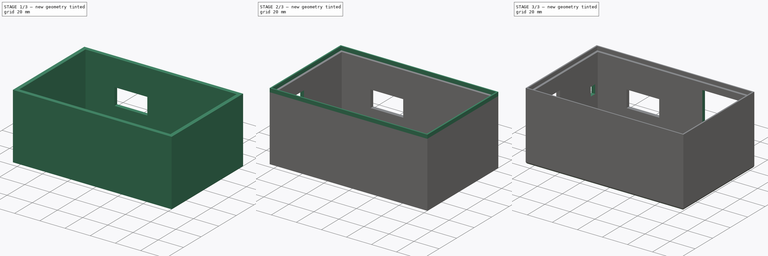
[diagram: build sequence overview — one tinted view per stage of 3, left to right]
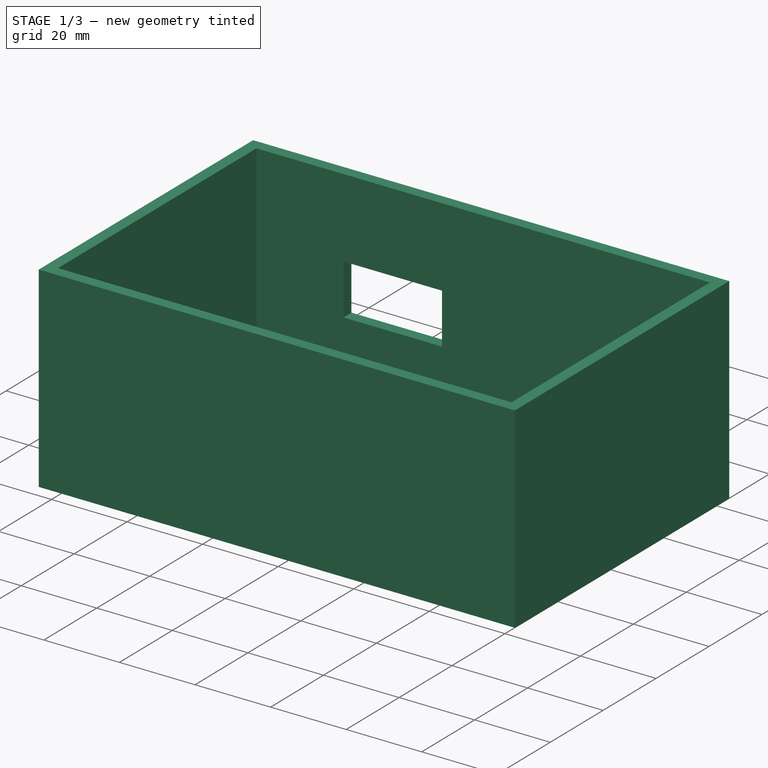
[diagram: stage 1 of 3 — iso view after this stage's code; geometry added in this stage tinted green]
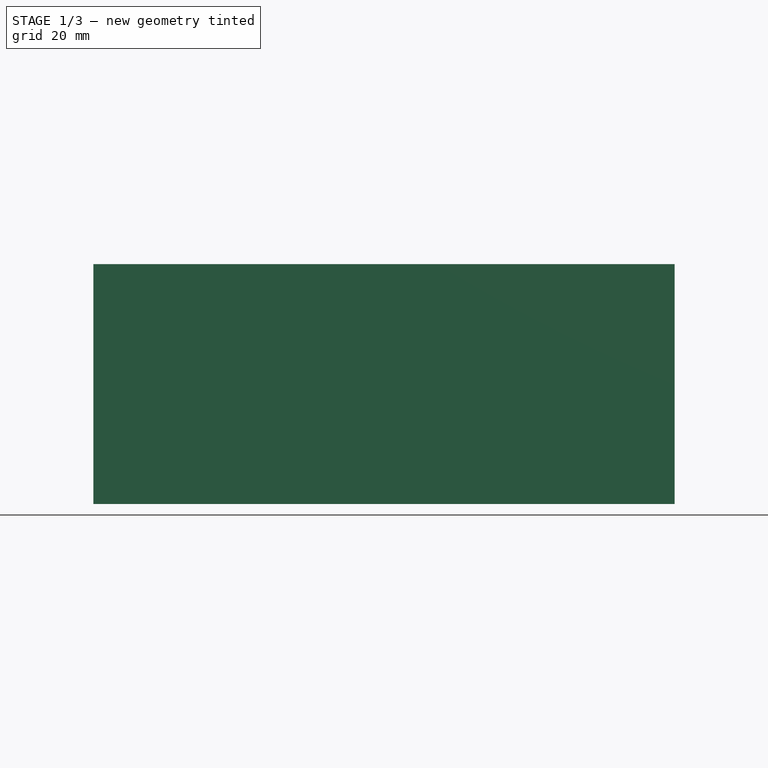
[diagram: stage 1 of 3 — front view after this stage's code; geometry added in this stage tinted green]
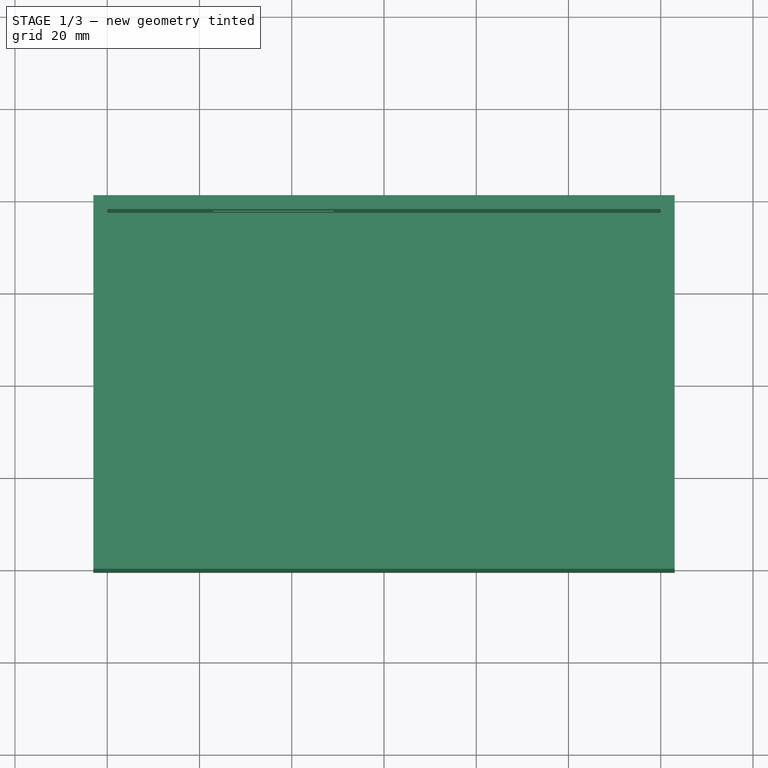
[diagram: stage 1 of 3 — top view after this stage's code; geometry added in this stage tinted green]
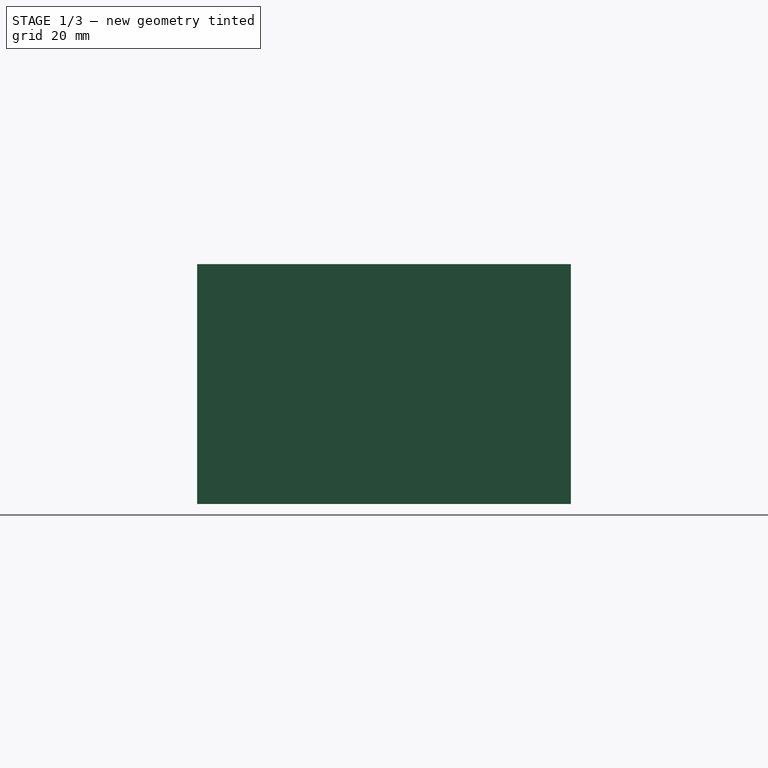
[diagram: stage 1 of 3 — right view after this stage's code; geometry added in this stage tinted green]
FCSTD DOCUMENT  (FreeCAD 0.19R24267 +148 (Git))
Label: pibox
License: All rights reserved
LicenseURL: http://en.wikipedia.org/wiki/All_rights_reserved
objects: Sketcher::SketchObject×7, PartDesign::Pocket×4, PartDesign::Pad×3, PartDesign::Fillet×1, PartDesign::Body×1
note: 24 computed .brp shape members not serialized (recipe doc carries the construction recipe); baked Part::Feature solids carry a one-line shape summary decoded from their .brp

FEATURE [Sketcher::SketchObject] Sketch
  FullyConstrained = true
  sketch-geometry (8):
    g0: LineSegment StartX=-60 StartY=37.5 StartZ=0 EndX=60 EndY=37.5 EndZ=0
    g1: LineSegment StartX=60 StartY=37.5 StartZ=0 EndX=60 EndY=-37.5 EndZ=0
    g2: LineSegment StartX=60 StartY=-37.5 StartZ=0 EndX=-60 EndY=-37.5 EndZ=0
    g3: LineSegment StartX=-60 StartY=-37.5 StartZ=0 EndX=-60 EndY=37.5 EndZ=0
    g4: LineSegment StartX=-63 StartY=40.5 StartZ=0 EndX=63 EndY=40.5 EndZ=0
    g5: LineSegment StartX=63 StartY=40.5 StartZ=0 EndX=63 EndY=-40.5 EndZ=0
    g6: LineSegment StartX=63 StartY=-40.5 StartZ=0 EndX=-63 EndY=-40.5 EndZ=0
    g7: LineSegment StartX=-63 StartY=-40.5 StartZ=0 EndX=-63 EndY=40.5 EndZ=0
  constraints (20):
    c: Coincident(g0,g1)
    c: Coincident(g1,g2)
    c: Coincident(g2,g3)
    c: Coincident(g3,g0)
    c: Horizontal(g0)
    c: Vertical(g1)
    c: DistanceX(g0,g0) = 120
    c: DistanceY(g1,g1) = 75
    c: Symmetric(g2,g1,g-2)
    c: Symmetric(g2,g0,g-1)
    c: Coincident(g4,g5)
    c: Coincident(g5,g6)
    c: Coincident(g6,g7)
    c: Coincident(g7,g4)
    c: Horizontal(g4)
    c: Vertical(g5)
    c: DistanceY(g5,g5) = 81
    c: DistanceX(g4,g4) = 126
    c: Symmetric(g6,g5,g-2)
    c: Symmetric(g6,g4,g-1)
FEATURE [PartDesign::Pad] Pad
  Direction = (1,1,1)
  Length = 49
  Length2 = 100
  Profile = -> Sketch
  Type = 0
FEATURE [Sketcher::SketchObject] Sketch001
  FullyConstrained = true
  MapMode = 5
  Placement = pos=(0,0,0) rot=(1,0,0;3.14159rad)
  Support = -> [Pad]
  sketch-geometry (4):
    g0: LineSegment StartX=-63 StartY=40.5 StartZ=0 EndX=63 EndY=40.5 EndZ=0
    g1: LineSegment StartX=63 StartY=40.5 StartZ=0 EndX=63 EndY=-40.5 EndZ=0
    g2: LineSegment StartX=63 StartY=-40.5 StartZ=0 EndX=-63 EndY=-40.5 EndZ=0
    g3: LineSegment StartX=-63 StartY=-40.5 StartZ=0 EndX=-63 EndY=40.5 EndZ=0
  constraints (10):
    c: Coincident(g0,g1)
    c: Coincident(g1,g2)
    c: Coincident(g2,g3)
    c: Coincident(g3,g0)
    c: Horizontal(g0)
    c: Vertical(g3)
    c: DistanceY(g1,g1) = 81
    c: DistanceX(g0,g0) = 126
    c: Symmetric(g2,g1,g-2)
    c: Symmetric(g1,g0,g-1)
FEATURE [PartDesign::Pad] Pad001
  BaseFeature = -> Pad
  Direction = (1,1,1)
  Length = 3
  Length2 = 100
  Profile = -> Sketch001
  Type = 0
FEATURE [Sketcher::SketchObject] Sketch003
  FullyConstrained = false
  MapMode = 5
  Placement = pos=(-63,0,0) rot=(0.57735,-0.57735,-0.57735;2.0944rad)
  sketch-geometry (8):
    g0: LineSegment StartX=5.6 StartY=37.8571 StartZ=0 EndX=22.6 EndY=37.8571 EndZ=0
    g1: LineSegment StartX=22.6 StartY=37.8571 StartZ=0 EndX=22.6 EndY=23.8571 EndZ=0
    g2: LineSegment StartX=22.6 StartY=23.8571 StartZ=0 EndX=5.6 EndY=23.8571 EndZ=0
    g3: LineSegment StartX=5.6 StartY=23.8571 StartZ=0 EndX=5.6 EndY=37.8571 EndZ=0
    g4: LineSegment StartX=24.4 StartY=38.697 StartZ=0 EndX=31.2 EndY=38.697 EndZ=0
    g5: LineSegment StartX=31.2 StartY=38.697 StartZ=0 EndX=31.2 EndY=24.697 EndZ=0
    g6: LineSegment StartX=31.2 StartY=24.697 StartZ=0 EndX=24.4 EndY=24.697 EndZ=0
    g7: LineSegment StartX=24.4 StartY=24.697 StartZ=0 EndX=24.4 EndY=38.697 EndZ=0
  constraints (22):
    c: Coincident(g0,g1)
    c: Coincident(g1,g2)
    c: Coincident(g2,g3)
    c: Coincident(g3,g0)
    c: Horizontal(g0)
    c: Horizontal(g2)
    c: Vertical(g1)
    c: Vertical(g3)
    c: DistanceX(g0,g0) = 17
    c: Distance(g0,g-2) = 5.6
    c: DistanceY(g1,g1) = 14
    c: Coincident(g4,g5)
    c: Coincident(g5,g6)
    c: Coincident(g6,g7)
    c: Coincident(g7,g4)
    c: Horizontal(g4)
    c: Horizontal(g6)
    c: Vertical(g5)
    c: Vertical(g7)
    c: DistanceX(g4,g4) = 6.8
    c: DistanceX(g0,g4) = 1.8
    c: DistanceY(g5,g5) = 14
FEATURE [Sketcher::SketchObject] Sketch004
  AttachmentOffset = pos=(0,0,7) rot=(0,0,1;0rad)
  FullyConstrained = false
  MapMode = 5
  Placement = pos=(0,47.5,-2e-15) rot=(0,0.707107,0.707107;3.14159rad)
  sketch-geometry (4):
    g0: LineSegment StartX=-53.5389 StartY=43.8903 StartZ=0 EndX=-23.5389 EndY=43.8903 EndZ=0
    g1: LineSegment StartX=-23.5389 StartY=43.8903 StartZ=0 EndX=-23.5389 EndY=19.8903 EndZ=0
    g2: LineSegment StartX=-23.5389 StartY=19.8903 StartZ=0 EndX=-53.5389 EndY=19.8903 EndZ=0
    g3: LineSegment StartX=-53.5389 StartY=19.8903 StartZ=0 EndX=-53.5389 EndY=43.8903 EndZ=0
  constraints (10):
    c: Coincident(g0,g1)
    c: Coincident(g1,g2)
    c: Coincident(g2,g3)
    c: Coincident(g3,g0)
    c: Horizontal(g0)
    c: Horizontal(g2)
    c: Vertical(g1)
    c: Vertical(g3)
    c: DistanceY(g1,g1) = 24
    c: DistanceX(g0,g0) = 30
FEATURE [Sketcher::SketchObject] Sketch006
  FullyConstrained = false
  MapMode = 5
  Placement = pos=(0,40.5,0) rot=(0,0.707107,0.707107;3.14159rad)
  sketch-geometry (4):
    g0: LineSegment StartX=10.9054 StartY=28.0858 StartZ=0 EndX=36.9778 EndY=28.0858 EndZ=0
    g1: LineSegment StartX=36.9778 StartY=28.0858 StartZ=0 EndX=36.9778 EndY=14.7075 EndZ=0
    g2: LineSegment StartX=36.9778 StartY=14.7075 StartZ=0 EndX=10.9054 EndY=14.7075 EndZ=0
    g3: LineSegment StartX=10.9054 StartY=14.7075 StartZ=0 EndX=10.9054 EndY=28.0858 EndZ=0
  constraints (8):
    c: Coincident(g0,g1)
    c: Coincident(g1,g2)
    c: Coincident(g2,g3)
    c: Coincident(g3,g0)
    c: Horizontal(g0)
    c: Horizontal(g2)
    c: Vertical(g1)
    c: Vertical(g3)
FEATURE [PartDesign::Pocket] Pocket002
  BaseFeature = -> Pad001
  Length = 5
  Length2 = 100
  Profile = -> Sketch006
  Type = 0
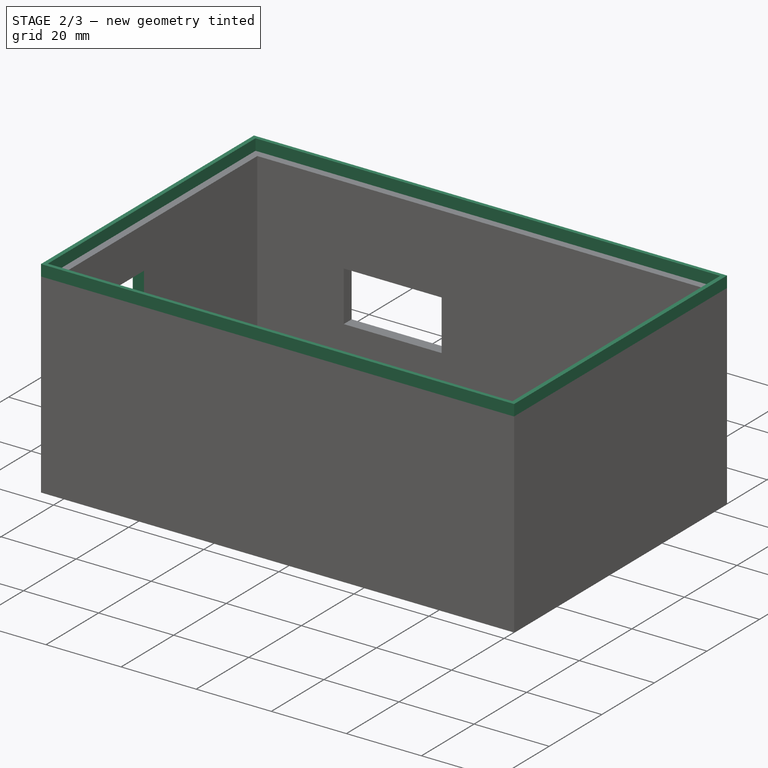
[diagram: stage 2 of 3 — iso view after this stage's code; geometry added in this stage tinted green]
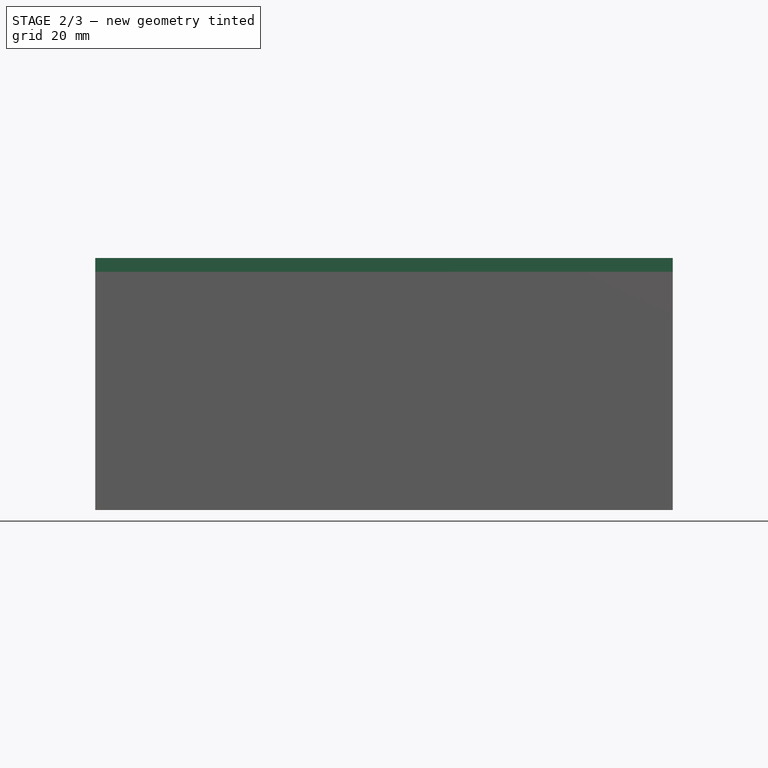
[diagram: stage 2 of 3 — front view after this stage's code; geometry added in this stage tinted green]
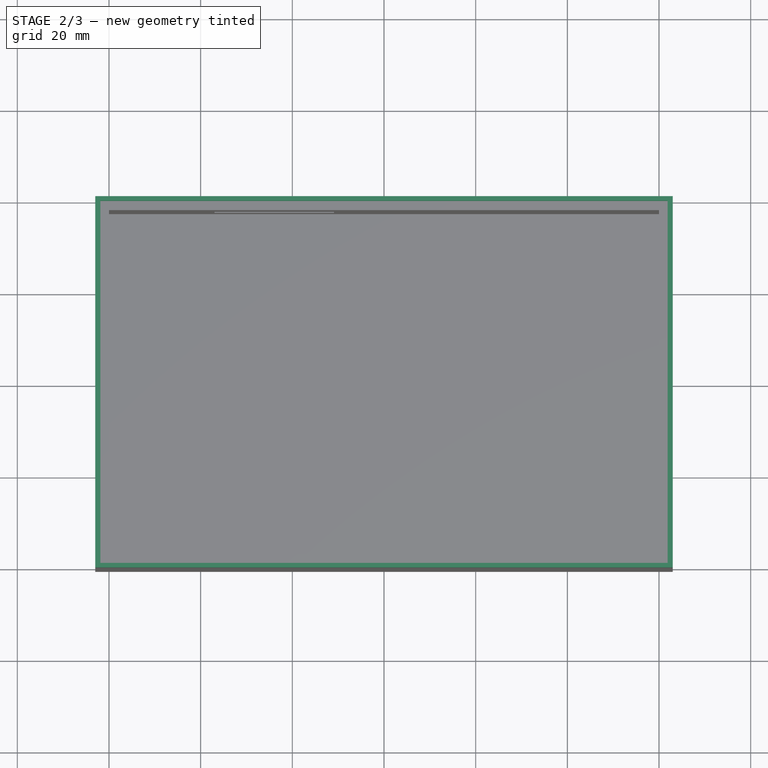
[diagram: stage 2 of 3 — top view after this stage's code; geometry added in this stage tinted green]
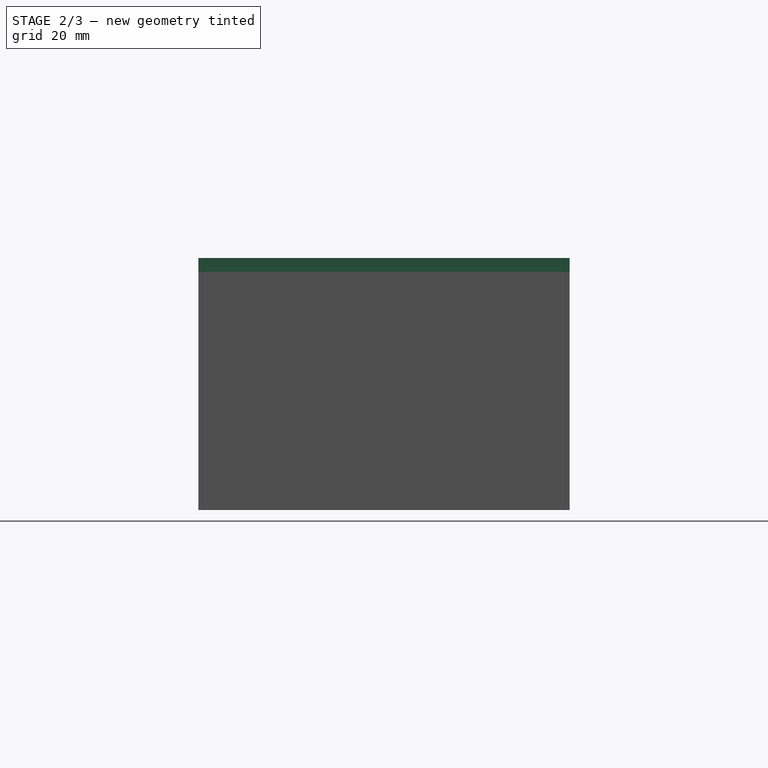
[diagram: stage 2 of 3 — right view after this stage's code; geometry added in this stage tinted green]
FEATURE [Sketcher::SketchObject] Sketch007
  FullyConstrained = false
  MapMode = 5
  Placement = pos=(0,0,49) rot=(0,0,1;0rad)
  Support = -> [Pocket002]
  sketch-geometry (8):
    g0: LineSegment StartX=-63 StartY=40.5 StartZ=0 EndX=63 EndY=40.5 EndZ=0
    g1: LineSegment StartX=63 StartY=40.5 StartZ=0 EndX=63 EndY=-40.5 EndZ=0
    g2: LineSegment StartX=63 StartY=-40.5 StartZ=0 EndX=-63 EndY=-40.5 EndZ=0
    g3: LineSegment StartX=-63 StartY=-40.5 StartZ=0 EndX=-63 EndY=40.5 EndZ=0
    g4: LineSegment StartX=-61.8781 StartY=39.5043 StartZ=0 EndX=61.8781 EndY=39.5043 EndZ=0
    g5: LineSegment StartX=61.8781 StartY=39.5043 StartZ=0 EndX=61.8781 EndY=-39.5043 EndZ=0
    g6: LineSegment StartX=61.8781 StartY=-39.5043 StartZ=0 EndX=-61.8781 EndY=-39.5043 EndZ=0
    g7: LineSegment StartX=-61.8781 StartY=-39.5043 StartZ=0 EndX=-61.8781 EndY=39.5043 EndZ=0
  constraints (22):
    c: Coincident(g0,g1)
    c: Coincident(g1,g2)
    c: Coincident(g2,g3)
    c: Coincident(g3,g0)
    c: Horizontal(g0)
    c: Vertical(g1)
    c: Coincident(g4,g5)
    c: Coincident(g5,g6)
    c: Coincident(g6,g7)
    c: Coincident(g7,g4)
    c: Horizontal(g4)
    c: Horizontal(g6)
    c: Vertical(g5)
    c: Vertical(g7)
    c: DistanceY(g1,g1) = 81
    c: DistanceX(g0,g0) = 126
    c: Distance(g4,g0) = 1.5
    c: Distance(g4,g0) = 1.5
    c: Symmetric(g2,g1,g-2)
    c: Symmetric(g2,g0,g-1)
    c: Distance(g5,g1) = 1.5
    c: Distance(g6,g2) = 1.5
FEATURE [PartDesign::Pad] Pad004
  BaseFeature = -> Pocket002
  Direction = (1,1,1)
  Length = 3
  Length2 = 100
  Profile = -> Sketch007
  Type = 0
FEATURE [PartDesign::Pocket] Pocket
  BaseFeature = -> Pad004
  Length = 5
  Length2 = 100
  Profile = -> Sketch003
  Type = 0
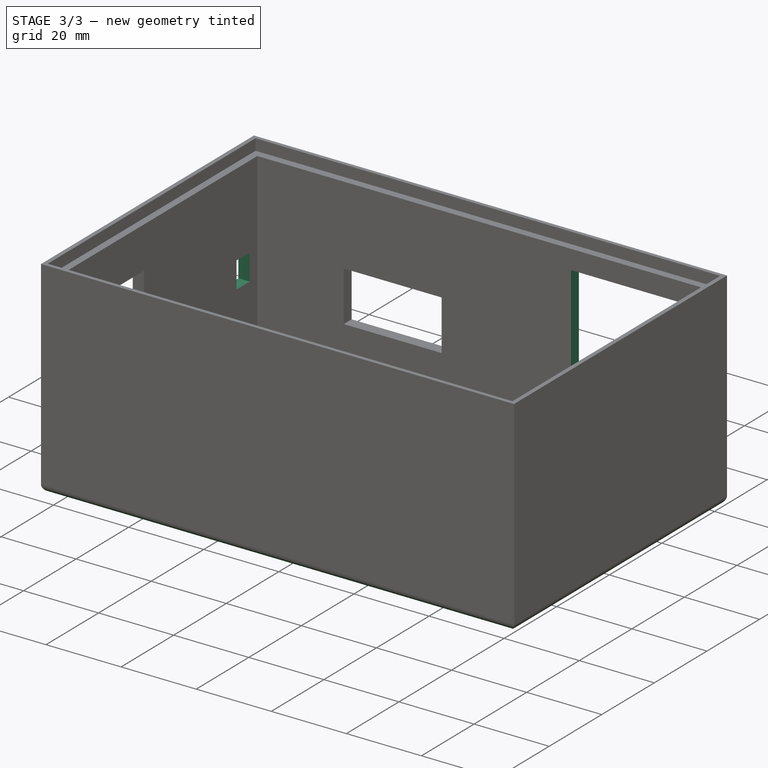
[diagram: stage 3 of 3 — iso view after this stage's code; geometry added in this stage tinted green]
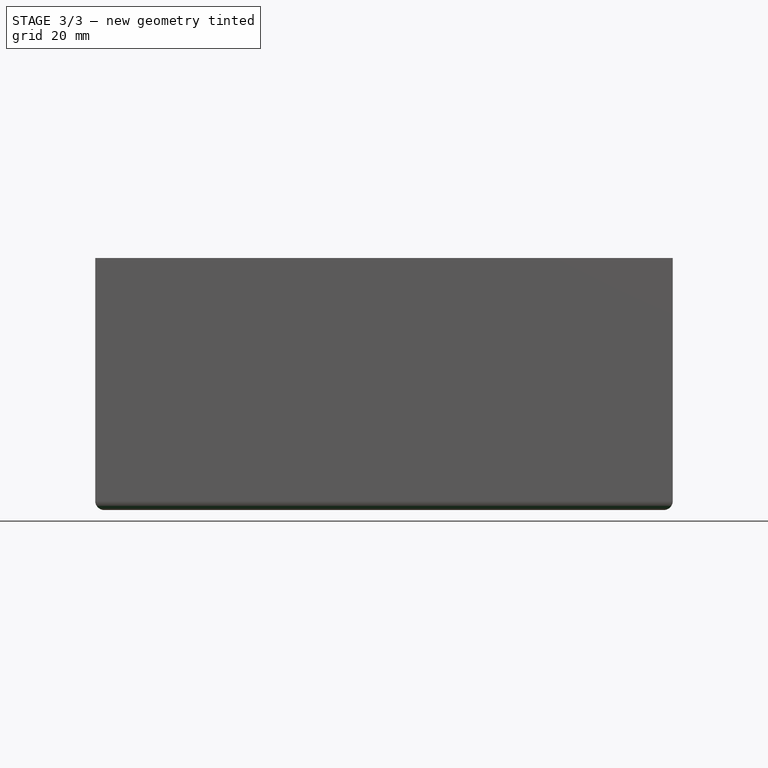
[diagram: stage 3 of 3 — front view after this stage's code; geometry added in this stage tinted green]
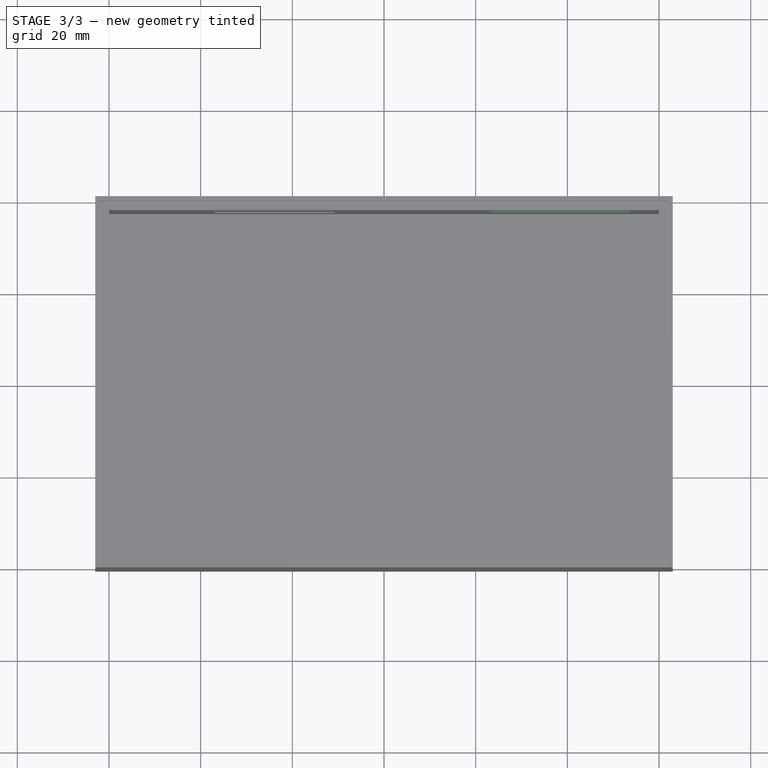
[diagram: stage 3 of 3 — top view after this stage's code; geometry added in this stage tinted green]
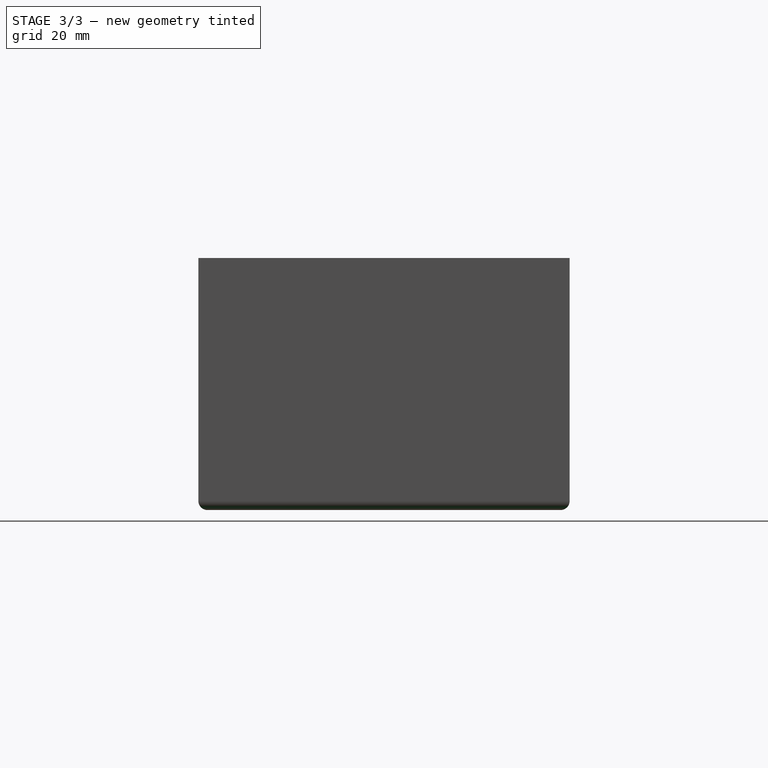
[diagram: stage 3 of 3 — right view after this stage's code; geometry added in this stage tinted green]
FEATURE [PartDesign::Pocket] Pocket003
  BaseFeature = -> Pocket
  Length = 10
  Length2 = 100
  Offset = 3
  Profile = -> Sketch004
  Type = 2
FEATURE [PartDesign::Fillet] Fillet
  Base = -> Pocket003 [Face26]
  BaseFeature = -> Pocket003
  Radius = 2
  SupportTransform = false
FEATURE [Sketcher::SketchObject] Sketch008
  FullyConstrained = false
  MapMode = 5
  Placement = pos=(-63,0,0) rot=(0.57735,-0.57735,-0.57735;2.0944rad)
  Support = -> [Fillet]
  sketch-geometry (4):
    g0: LineSegment StartX=-34.5988 StartY=26.8915 StartZ=0 EndX=-29.5988 EndY=26.8915 EndZ=0
    g1: LineSegment StartX=-29.5988 StartY=26.8915 StartZ=0 EndX=-29.5988 EndY=19.8915 EndZ=0
    g2: LineSegment StartX=-29.5988 StartY=19.8915 StartZ=0 EndX=-34.5988 EndY=19.8915 EndZ=0
    g3: LineSegment StartX=-34.5988 StartY=19.8915 StartZ=0 EndX=-34.5988 EndY=26.8915 EndZ=0
  constraints (10):
    c: Coincident(g0,g1)
    c: Coincident(g1,g2)
    c: Coincident(g2,g3)
    c: Coincident(g3,g0)
    c: Horizontal(g0)
    c: Horizontal(g2)
    c: Vertical(g1)
    c: Vertical(g3)
    c: DistanceY(g1,g1) = 7
    c: DistanceX(g0,g0) = 5
FEATURE [PartDesign::Pocket] Pocket004
  BaseFeature = -> Fillet
  Length = 5
  Length2 = 100
  Profile = -> Sketch008
  Type = 0
FEATURE [PartDesign::Body] Body
  Group = -> [Sketch,Pad,Sketch001,Pad001,Sketch003,Sketch004,Sketch006,Pocket002,Sketch007,Pad004,Pocket,Pocket003,Fillet,Sketch008,Pocket004]
  Origin = -> Origin
  Tip = -> Pocket004
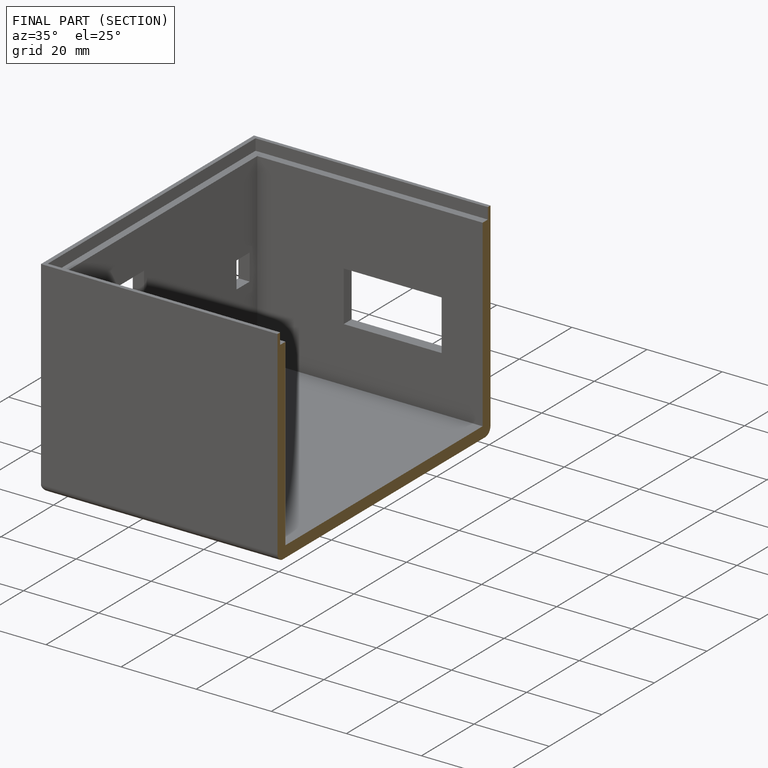
[diagram: finished part — half-section view (interior)]
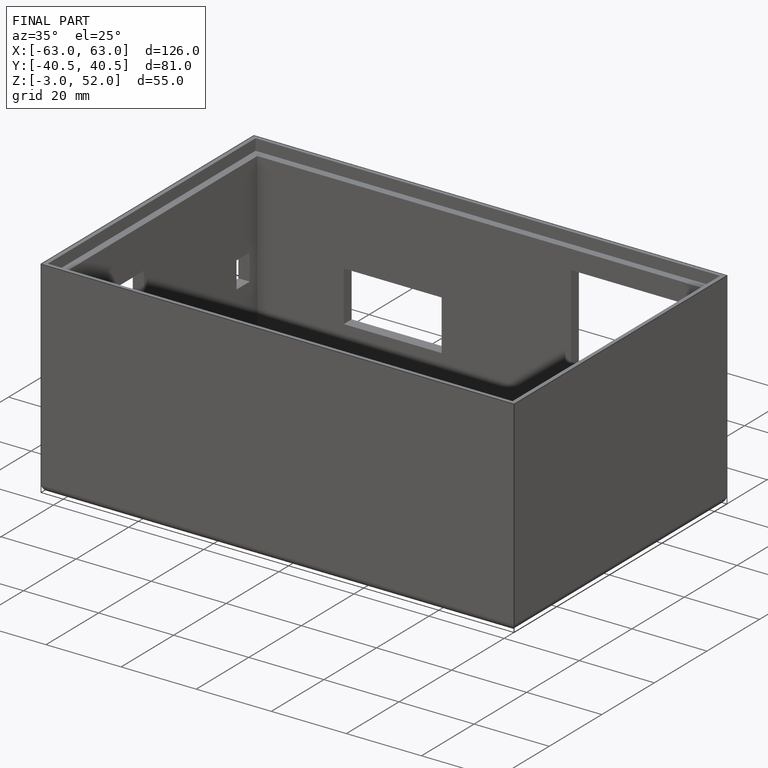
[diagram: finished part — iso view with bounding-box wireframe]
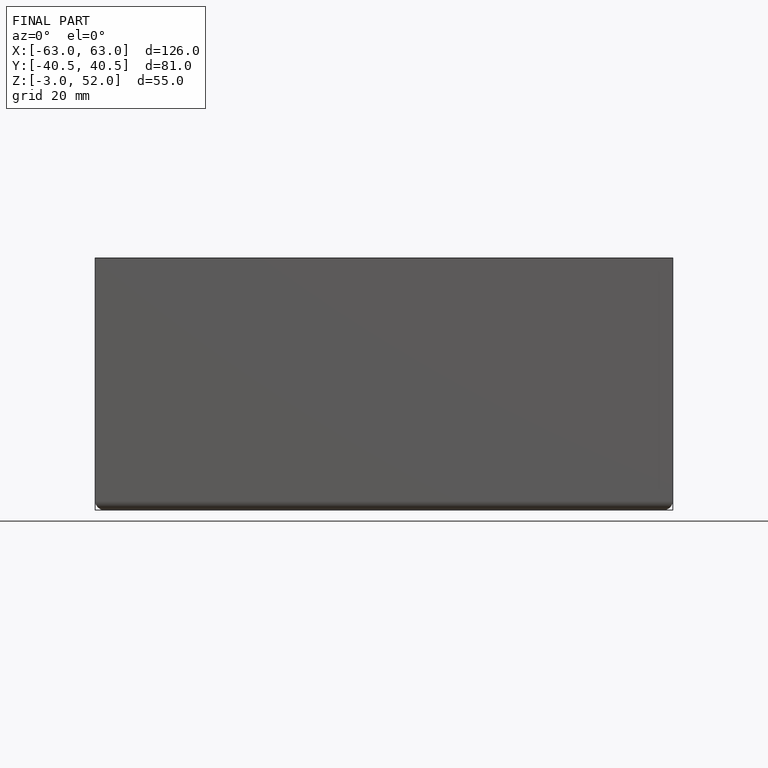
[diagram: finished part — front view with bounding-box wireframe]
